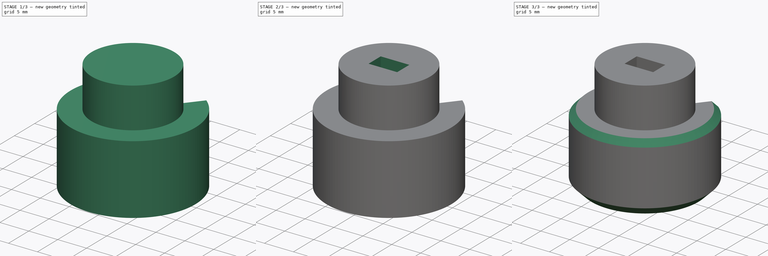
[diagram: build sequence overview — one tinted view per stage of 3, left to right]
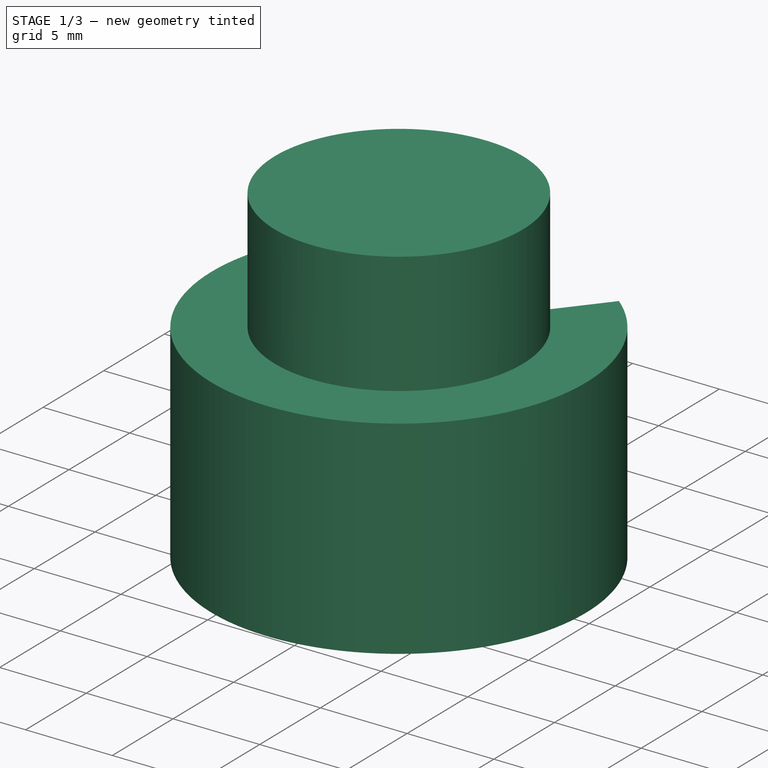
[diagram: stage 1 of 3 — iso view after this stage's code; geometry added in this stage tinted green]
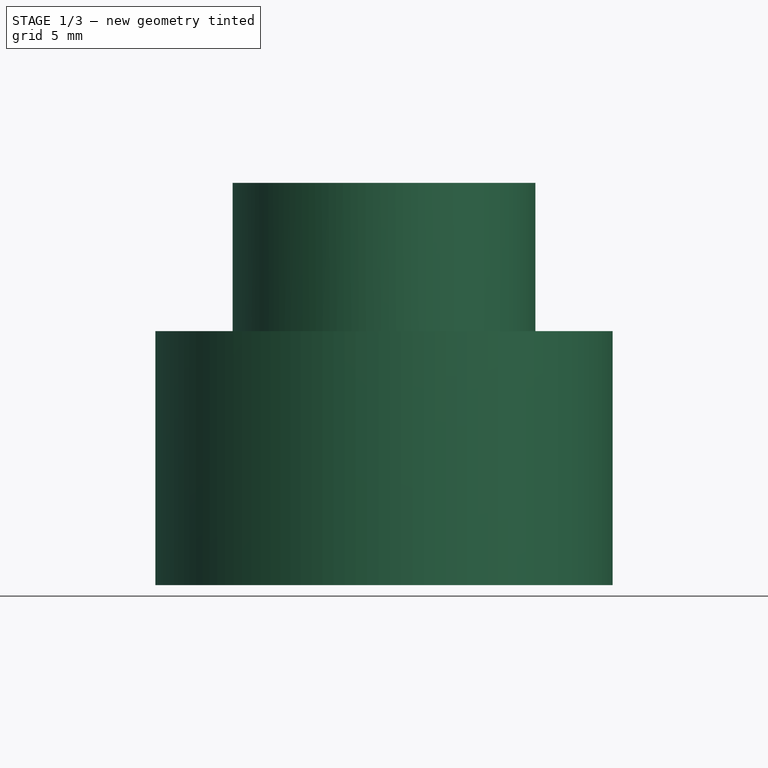
[diagram: stage 1 of 3 — front view after this stage's code; geometry added in this stage tinted green]
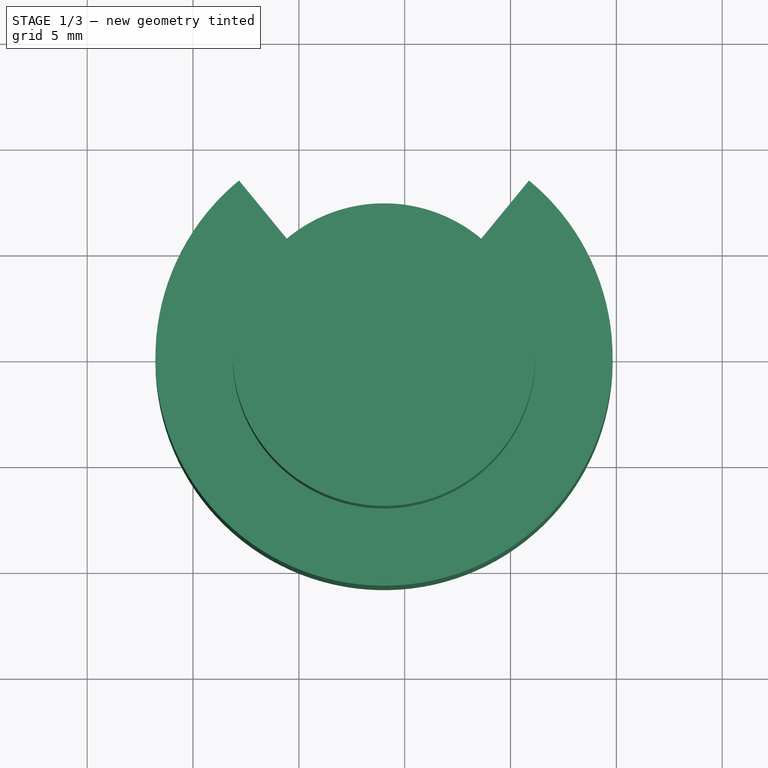
[diagram: stage 1 of 3 — top view after this stage's code; geometry added in this stage tinted green]
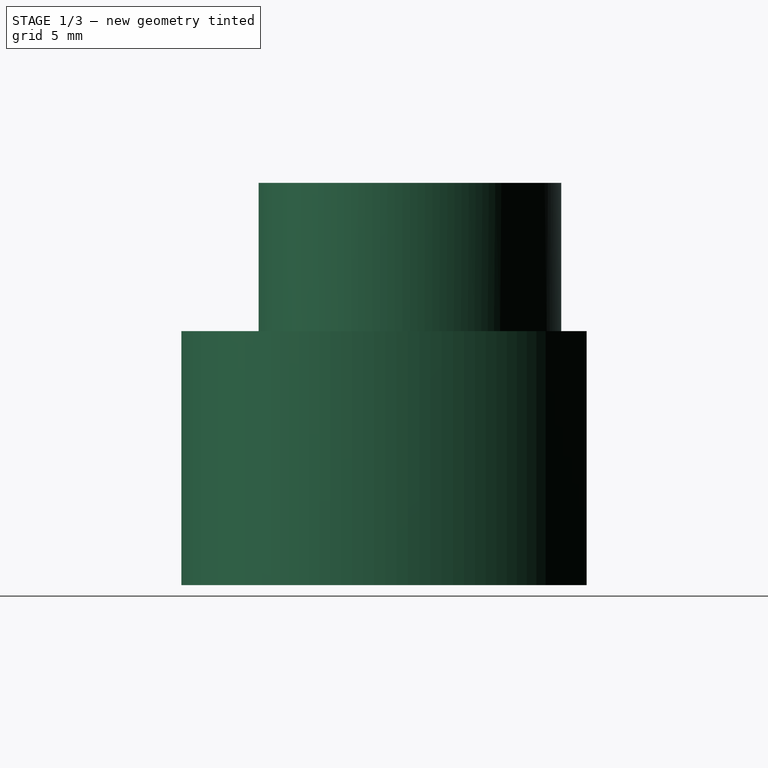
[diagram: stage 1 of 3 — right view after this stage's code; geometry added in this stage tinted green]
FCSTD DOCUMENT  (FreeCAD 0.21R33771 (Git))
Label: puszka silnik
License: All rights reserved
LicenseURL: http://en.wikipedia.org/wiki/All_rights_reserved
objects: Sketcher::SketchObject×3, PartDesign::Pad×2, PartDesign::Chamfer×2, PartDesign::Pocket×1, PartDesign::Body×1
note: 14 computed .brp shape members not serialized (recipe doc carries the construction recipe); baked Part::Feature solids carry a one-line shape summary decoded from their .brp

FEATURE [Sketcher::SketchObject] Sketch009
  FullyConstrained = false
  MapMode = 5
  Support = -> [XY_Plane002]
  sketch-geometry (1):
    g0: Circle CenterX=84.0229 CenterY=0 CenterZ=0 NormalX=0 NormalY=0 NormalZ=1 AngleXU=0 Radius=7.15
  constraints (2):
    c: PointOnObject(g0,g-1)
    c: Diameter(g0) = 14.3
FEATURE [PartDesign::Pad] Pad009
  Direction = (0,0,1)
  Length = 7
  Length2 = 10
  Profile = -> Sketch009
  ReferenceAxis = -> Sketch009 [N_Axis]
  Type = 0
FEATURE [Sketcher::SketchObject] Sketch010
  ExternalGeometry = -> [Pad009]
  FullyConstrained = true
  MapMode = 5
  Placement = pos=(0,0,0) rot=(1,0,0;3.14159rad)
  Support = -> [Pad009]
  sketch-geometry (5):
    g0: ArcOfCircle CenterX=84.0229 CenterY=0 CenterZ=0 NormalX=0 NormalY=0 NormalZ=1 AngleXU=0 Radius=10.8 StartAngle=5.39944 EndAngle=10.3085
    g1: ArcOfCircle CenterX=84.0229 CenterY=0 CenterZ=0 NormalX=0 NormalY=0 NormalZ=1 AngleXU=0 Radius=7.15 StartAngle=4.02534 EndAngle=5.39944
    g2: LineSegment StartX=79.4879 StartY=-5.52781 StartZ=0 EndX=77.1729 EndY=-8.3497 EndZ=0
    g3: LineSegment StartX=88.5578 StartY=-5.52781 StartZ=0 EndX=90.8729 EndY=-8.3497 EndZ=0
    g4: GeomPoint X=84.0229 Y=-5.52781 Z=0
  constraints (13):
    c: Coincident(g0,g-3)
    c: Diameter(g0) = 21.6
    c: Coincident(g1,g0)
    c: Coincident(g2,g1)
    c: Coincident(g3,g1)
    c: Perpendicular(g1,g3)
    c: Perpendicular(g1,g2)
    c: Distance(g2,g3) = 13.7
    c: PointOnObject(g1,g-3)
    c: Coincident(g0,g2)
    c: Coincident(g0,g3)
    c: Symmetric(g1,g1,g4)
    c: Vertical(g4,g0)
FEATURE [PartDesign::Pad] Pad010
  BaseFeature = -> Pad009
  Direction = (0,0,-1)
  Length = 12
  Length2 = 10
  Profile = -> Sketch010
  ReferenceAxis = -> Sketch010 [N_Axis]
  Type = 0
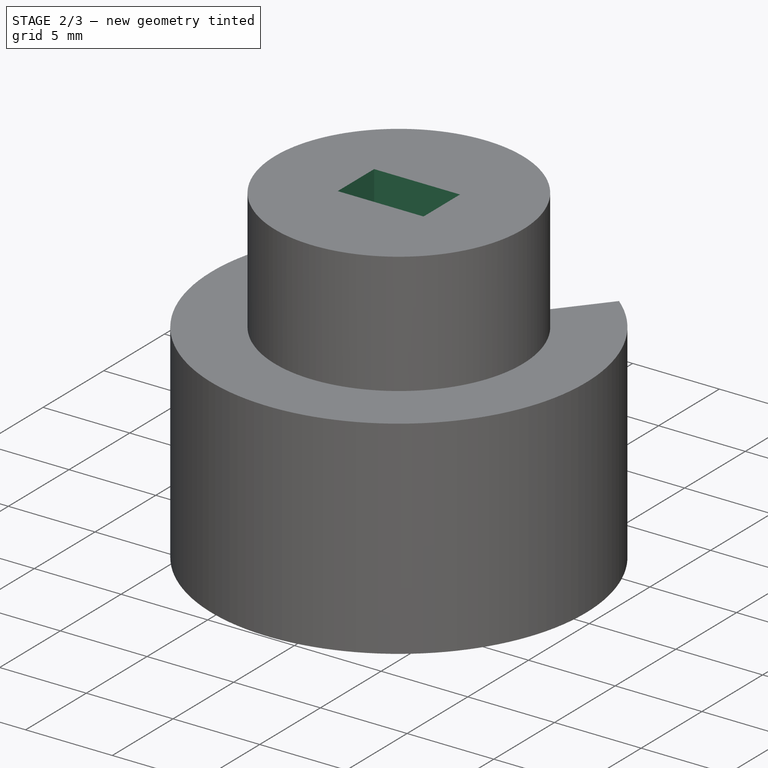
[diagram: stage 2 of 3 — iso view after this stage's code; geometry added in this stage tinted green]
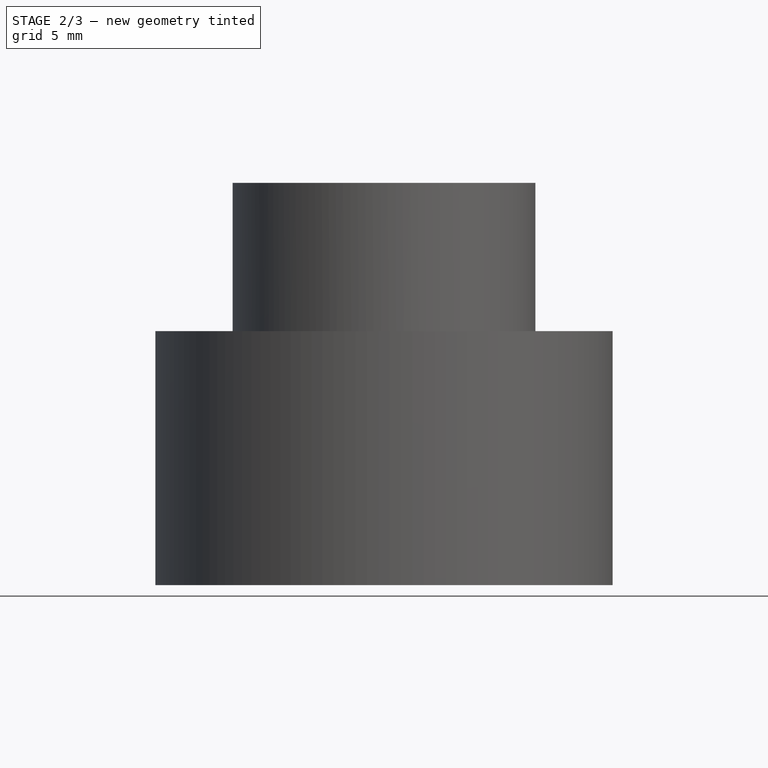
[diagram: stage 2 of 3 — front view after this stage's code; geometry added in this stage tinted green]
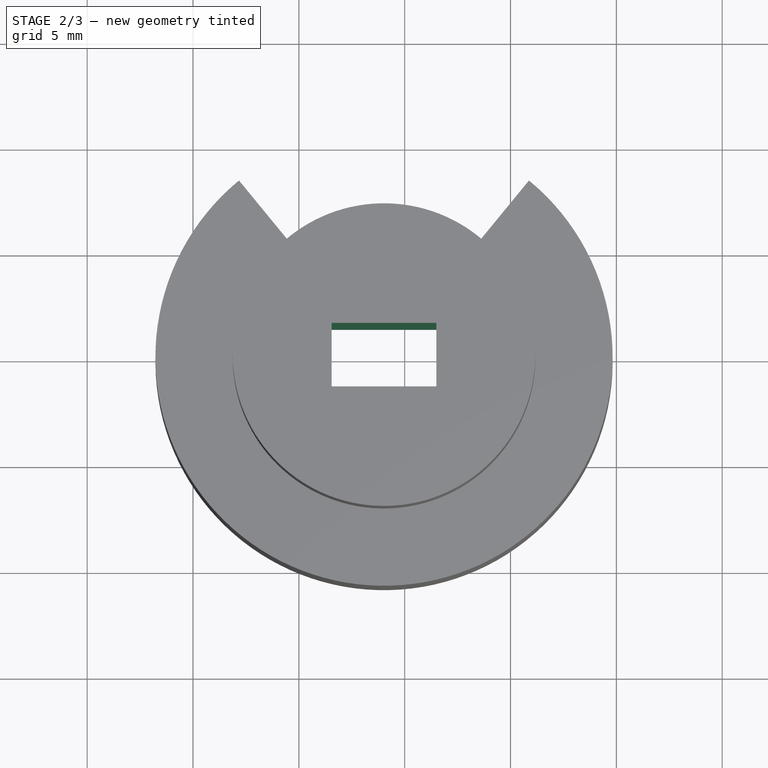
[diagram: stage 2 of 3 — top view after this stage's code; geometry added in this stage tinted green]
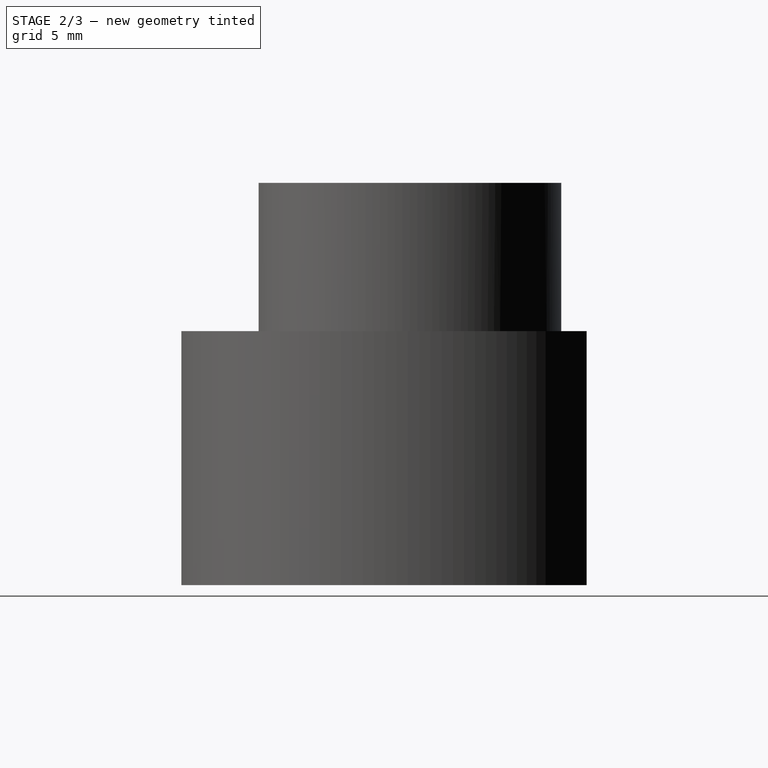
[diagram: stage 2 of 3 — right view after this stage's code; geometry added in this stage tinted green]
FEATURE [Sketcher::SketchObject] Sketch011
  ExternalGeometry = -> [Pad010]
  FullyConstrained = true
  MapMode = 5
  Placement = pos=(0,0,-12) rot=(1,0,0;3.14159rad)
  Support = -> [Pad010]
  sketch-geometry (5):
    g0: LineSegment StartX=81.5479 StartY=-1.5 StartZ=0 EndX=81.5479 EndY=1.5 EndZ=0
    g1: LineSegment StartX=81.5479 StartY=1.5 StartZ=0 EndX=86.4979 EndY=1.5 EndZ=0
    g2: LineSegment StartX=86.4979 StartY=1.5 StartZ=0 EndX=86.4979 EndY=-1.5 EndZ=0
    g3: LineSegment StartX=86.4979 StartY=-1.5 StartZ=0 EndX=81.5479 EndY=-1.5 EndZ=0
    g4: GeomPoint X=84.0229 Y=0 Z=0
  constraints (12):
    c: Coincident(g0,g1)
    c: Coincident(g1,g2)
    c: Coincident(g2,g3)
    c: Coincident(g3,g0)
    c: Horizontal(g1)
    c: Horizontal(g3)
    c: Vertical(g0)
    c: Vertical(g2)
    c: Symmetric(g1,g0,g4)
    c: Coincident(g4,g-3)
    c: Distance(g0) = 3
    c: Distance(g1) = 4.95
FEATURE [PartDesign::Pocket] Pocket
  BaseFeature = -> Pad010
  Direction = (0,0,1)
  Length = 19
  Length2 = 5
  Profile = -> Sketch011
  ReferenceAxis = -> Sketch011 [N_Axis]
  Type = 1
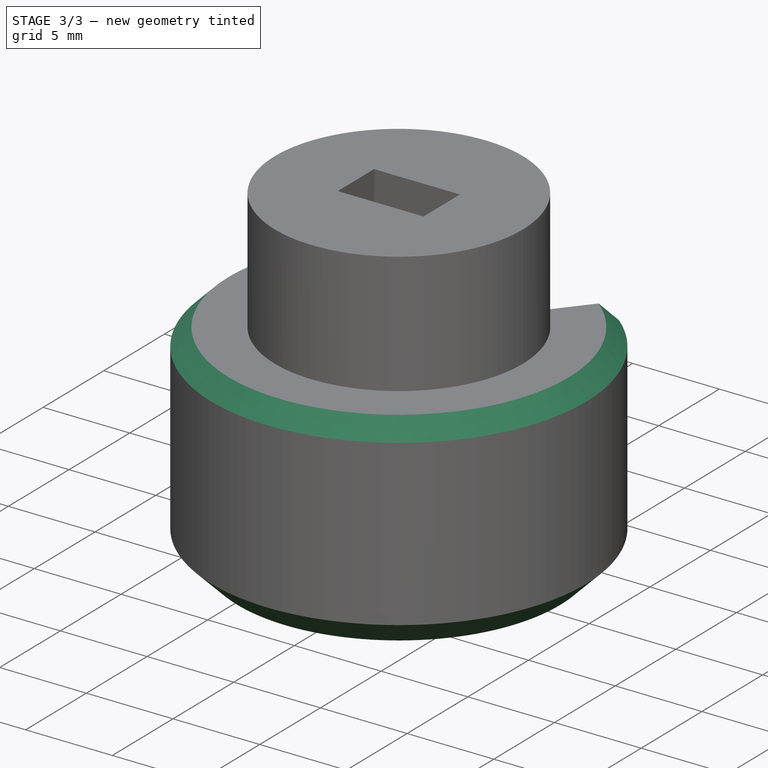
[diagram: stage 3 of 3 — iso view after this stage's code; geometry added in this stage tinted green]
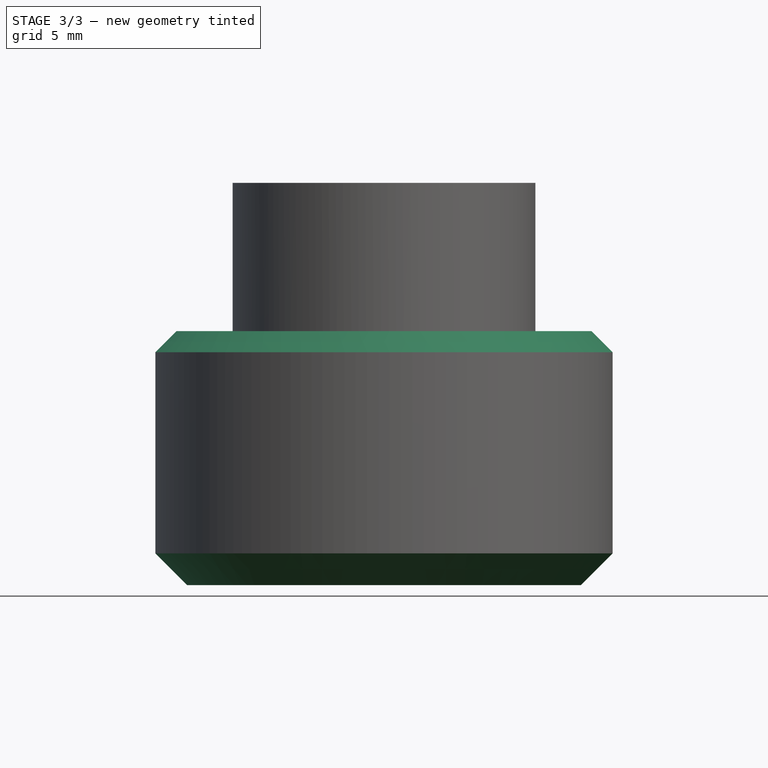
[diagram: stage 3 of 3 — front view after this stage's code; geometry added in this stage tinted green]
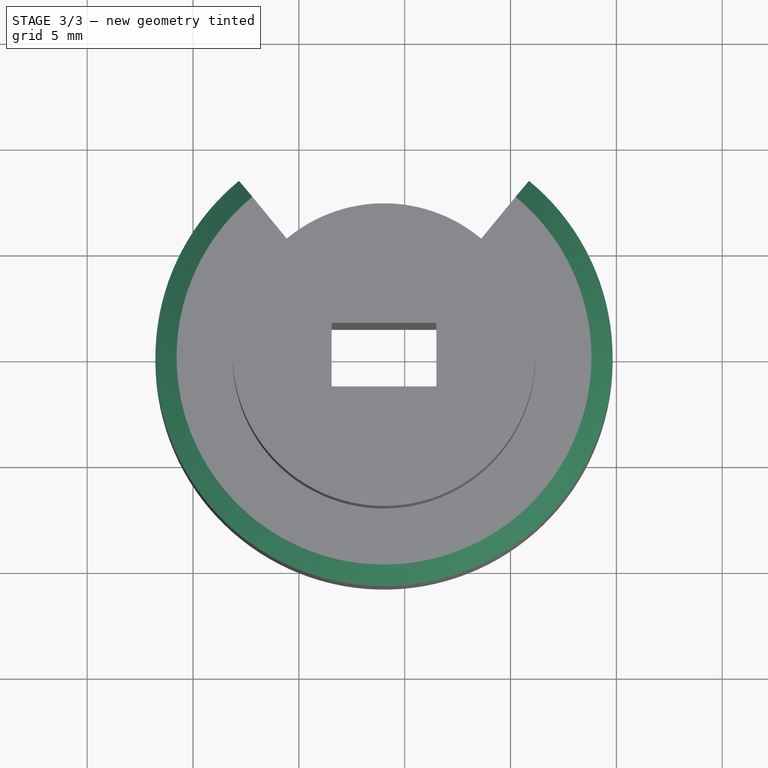
[diagram: stage 3 of 3 — top view after this stage's code; geometry added in this stage tinted green]
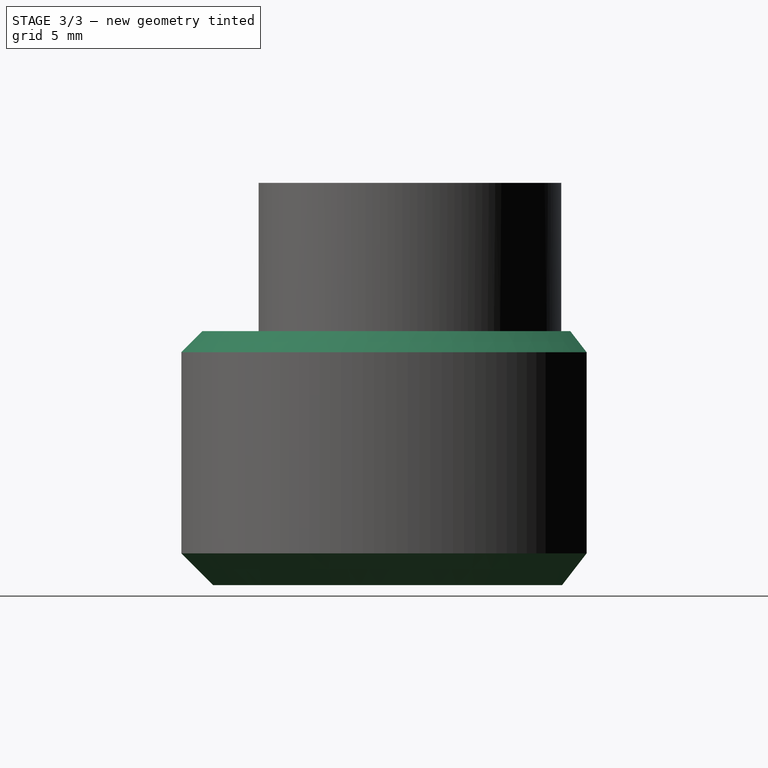
[diagram: stage 3 of 3 — right view after this stage's code; geometry added in this stage tinted green]
FEATURE [PartDesign::Chamfer] Chamfer
  Angle = 45
  Base = -> Pocket [Edge18]
  BaseFeature = -> Pocket
  ChamferType = 0
  FlipDirection = false
  Size = 1.5
  Size2 = 1
  SupportTransform = false
  UseAllEdges = false
FEATURE [PartDesign::Chamfer] Chamfer001
  Angle = 45
  Base = -> Chamfer [Edge3]
  BaseFeature = -> Chamfer
  ChamferType = 0
  FlipDirection = false
  Size = 1
  Size2 = 1
  SupportTransform = false
  UseAllEdges = false
FEATURE [PartDesign::Body] Body002  label="adapter krecacy"
  Group = -> [Sketch009,Pad009,Sketch010,Pad010,Sketch011,Pocket,Chamfer,Chamfer001]
  Origin = -> Origin002
  Tip = -> Chamfer001
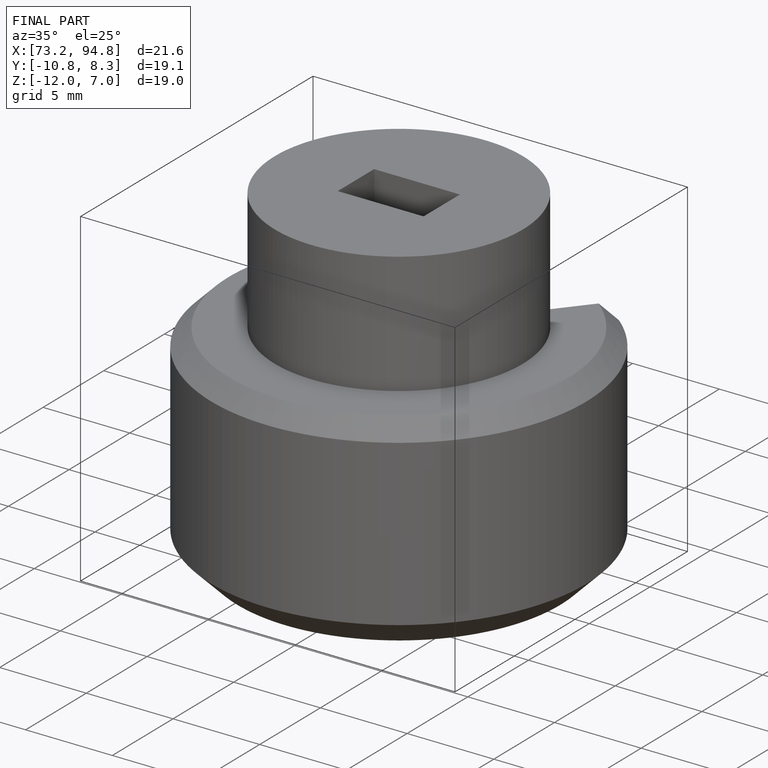
[diagram: finished part — iso view with bounding-box wireframe]
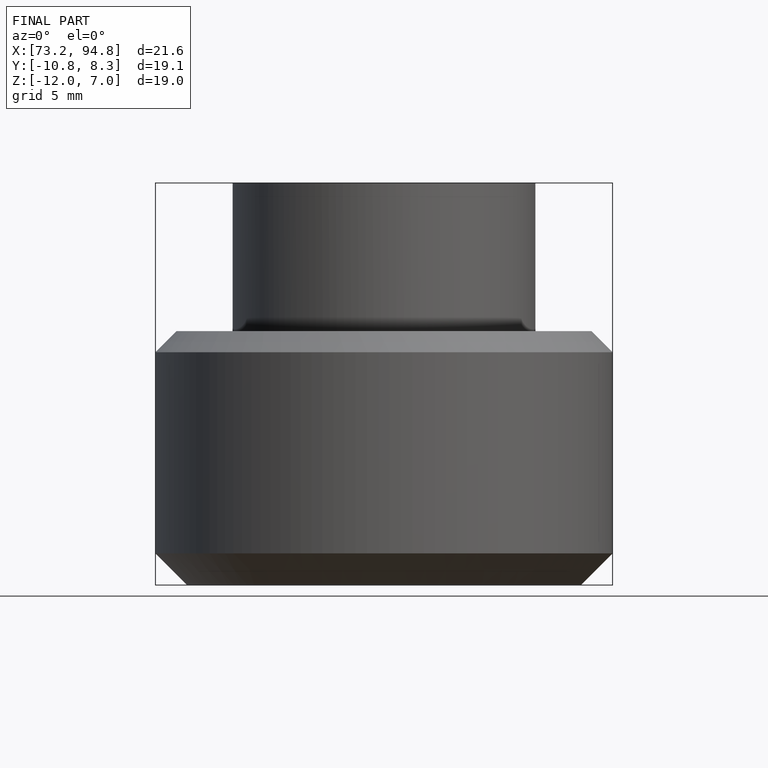
[diagram: finished part — front view with bounding-box wireframe]
